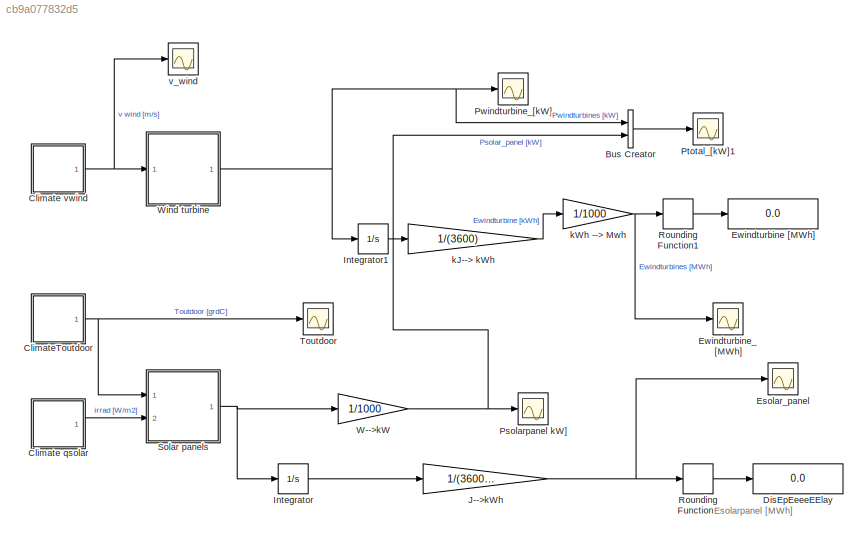
MODEL slx_cb9a077832d5
KIND model
CONFIG AbsTol = auto
CONFIG EnableMultiTasking = off
CONFIG FixedStep = auto
CONFIG InitFcn = global Az Inc\nSetup_Toutdoor\nSetup_qsolar2\nSetup_wind\nload SOL\nload Toutdoor\nload wind
CONFIG MaxStep = 900
CONFIG MinStep = auto
CONFIG RelTol = 1e-3
CONFIG SampleTimeConstraint = Unconstrained
CONFIG Solver = ode45
CONFIG SolverName = ode45
CONFIG StartTime = 0.0
CONFIG StopTime = 365*3600*24
BLOCK [BusCreator] Bus Creator
  DisplayOption = bar
  InheritFromInputs = on
  Inputs = 2
  Ports = [2, 1]
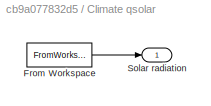
BLOCK [SubSystem] Climate  qsolar
  Ports = [0, 1]
  RequestExecContextInheritance = off
BLOCK [FromWorkspace] Climate  qsolar/From Workspace
  SampleTime = 0
  VariableName = Irrad
BLOCK [Outport] Climate  qsolar/Solar radiation
  IconDisplay = Port number
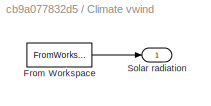
BLOCK [SubSystem] Climate vwind
  Ports = [0, 1]
  RequestExecContextInheritance = off
BLOCK [FromWorkspace] Climate vwind/From Workspace
  SampleTime = 0
  VariableName = vwind
BLOCK [Outport] Climate vwind/Solar radiation
  IconDisplay = Port number
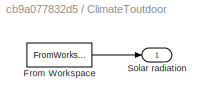
BLOCK [SubSystem] ClimateToutdoor
  Ports = [0, 1]
  RequestExecContextInheritance = off
BLOCK [FromWorkspace] ClimateToutdoor/From Workspace
  SampleTime = 0
  VariableName = Tout
BLOCK [Outport] ClimateToutdoor/Solar radiation
  IconDisplay = Port number
BLOCK [Display] DisEpEeeeEElay
  Decimation = 1
  Description = Esolar
  Ports = [1]
BLOCK [Scope] Esolar_panel
  Floating = off
  NumInputPorts = 1
  Ports = [1]
  ScopeSpecificationString = Simulink.scopes.TimeScopeBlockCfg('CurrentConfiguration', extmgr.ConfigurationSet(extmgr.Configuration('Core','General UI',true,'FigureColor',[1 1 1]),extmgr.Configuration('Core','Source UI',true),extmgr.Configuration('Sources','WiredSimulink',true,'DataLogging',true,'DataLoggingVariableName','Esolarpanel','SampleTime','3600','DataLoggingSaveFormat','Array','DataLoggingDecimation','1','DataLogging...<+2802ch>
BLOCK [Display] Ewindturbine [MWh]
  Decimation = 1
  Description = Esolar
  Ports = [1]
BLOCK [Scope] Ewindturbine_[MWh]
  Floating = off
  NumInputPorts = 1
  Ports = [1]
  ScopeSpecificationString = C++SS(StrPVP('Location','[218, 127, 1016, 616]'),StrPVP('Open','off'),MxPVP('AxesTitles',53,'struct(''axes1'',''%<SignalLabel>'')'),MxPVP('ScopeGraphics',56,'struct(''FigureColor'',''[1 1 1]'',''AxesColor'',''[1 1 1]'',''AxesTickColor'',''[0 0 0]'',''LineColors'',''[0 0 1;1 0 1;0 1 1;1 0 0;0 1 0;0 0 1]'',''LineStyles'',''-|-|-|-|-|-'',''LineWidths'',''[1 0.5 0.5 0.5 0.5 0.5]'',''MarkerStyles'',''n...<+371ch>
BLOCK [Integrator] Integrator
  Ports = [1, 1]
BLOCK [Integrator] Integrator1
  Ports = [1, 1]
BLOCK [Gain] J-->kWh
  Gain = 1/(3600)*10^-6
  OutDataTypeStr = Inherit: Inherit via internal rule
  ParamDataTypeStr = Inherit: Inherit via internal rule
  SaturateOnIntegerOverflow = off
BLOCK [Scope] Psolarpanel kW]
  Floating = off
  NumInputPorts = 1
  Ports = [1]
  ScopeSpecificationString = Simulink.scopes.TimeScopeBlockCfg('CurrentConfiguration', extmgr.ConfigurationSet(extmgr.Configuration('Core','General UI',true,'FigureColor',[1 1 1]),extmgr.Configuration('Core','Source UI',true),extmgr.Configuration('Sources','WiredSimulink',true,'DataLogging',true,'DataLoggingVariableName','Psolarpanel','SampleTime','3600','DataLoggingSaveFormat','Array','DataLoggingDecimation','1','DataLogging...<+2821ch>
BLOCK [Scope] Ptotal_[kW]1
  Floating = off
  NumInputPorts = 1
  Ports = [1]
  ScopeSpecificationString = Simulink.scopes.TimeScopeBlockCfg('CurrentConfiguration', extmgr.ConfigurationSet(extmgr.Configuration('Core','General UI',true,'FigureColor',[1 1 1]),extmgr.Configuration('Core','Source UI',true),extmgr.Configuration('Sources','WiredSimulink',true,'DataLogging',true,'DataLoggingVariableName','Ptotal','DataLoggingMaxPoints','50000','SampleTime','3600','DataLoggingSaveFormat','Array','DataLoggingDe...<+2877ch>
BLOCK [Scope] Pwindturbine_[kW]
  Floating = off
  NumInputPorts = 1
  Ports = [1]
  ScopeSpecificationString = Simulink.scopes.TimeScopeBlockCfg('CurrentConfiguration', extmgr.ConfigurationSet(extmgr.Configuration('Core','General UI',true,'FigureColor',[1 1 1]),extmgr.Configuration('Core','Source UI',true),extmgr.Configuration('Sources','WiredSimulink',true,'DataLogging',true,'DataLoggingVariableName','Pwindturbine','DataLoggingMaxPoints','50000','SampleTime','3600','DataLoggingSaveFormat','Array','DataLog...<+2859ch>
BLOCK [Rounding] Rounding Function1
  Operator = round
BLOCK [Rounding] Rounding Function2
  Operator = round
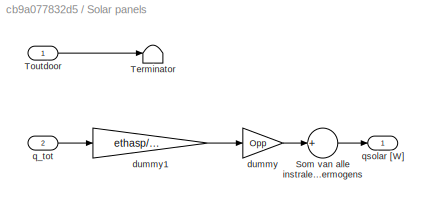
BLOCK [SubSystem] Solar panels
  Ports = [2, 1]
  RequestExecContextInheritance = off
BLOCK [Sum] Solar panels/Som van alle instralende vermogens
  InputSameDT = off
  Inputs = +
  OutDataTypeStr = Inherit: Inherit via internal rule
  Ports = [1, 1]
  SaturateOnIntegerOverflow = off
BLOCK [Terminator] Solar panels/Terminator
BLOCK [Inport] Solar panels/Toutdoor
  IconDisplay = Port number
BLOCK [Gain] Solar panels/dummy
  Gain = Opp
  OutDataTypeStr = Inherit: Inherit via internal rule
  ParamDataTypeStr = Inherit: Inherit via internal rule
  SaturateOnIntegerOverflow = off
BLOCK [Gain] Solar panels/dummy1
  Gain = ethasp/100
  OutDataTypeStr = Inherit: Inherit via internal rule
  ParamDataTypeStr = Inherit: Inherit via internal rule
  SaturateOnIntegerOverflow = off
BLOCK [Inport] Solar panels/q_tot
  IconDisplay = Port number
  Port = 2
BLOCK [Outport] Solar panels/qsolar [W]
  IconDisplay = Port number
BLOCK [Scope] Toutdoor
  Floating = off
  NumInputPorts = 1
  Ports = [1]
  ScopeSpecificationString = C++SS(StrPVP('Location','[465, 98, 1221, 534]'),StrPVP('Open','off'),MxPVP('AxesTitles',53,'struct(''axes1'',''%<SignalLabel>'')'),MxPVP('ScopeGraphics',56,'struct(''FigureColor'',''[1 1 1]'',''AxesColor'',''[1 1 1]'',''AxesTickColor'',''[0 0 0]'',''LineColors'',''[0 0 1;1 0 1;0 1 1;1 0 0;0 1 0;0 0 1]'',''LineStyles'',''-|-|-|-|-|-'',''LineWidths'',''[1 0.5 0.5 0.5 0.5 0.5]'',''MarkerStyles'',''no...<+332ch>
BLOCK [Gain] W-->kW
  Gain = 1/1000
  OutDataTypeStr = Inherit: Inherit via internal rule
  ParamDataTypeStr = Inherit: Inherit via internal rule
  SaturateOnIntegerOverflow = off
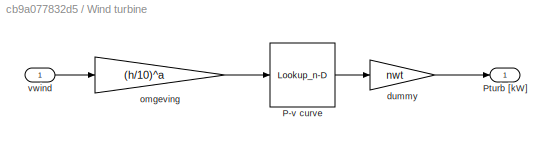
BLOCK [SubSystem] Wind turbine
  Ports = [1, 1]
  RequestExecContextInheritance = off
BLOCK [Lookup_n-D] Wind turbine/P-v curve
  BreakpointsForDimension1 = v
  InternalRulePriority = Speed
  NumberOfTableDimensions = 1
  Ports = [1, 1]
  RndMeth = Simplest
  Table = P
BLOCK [Outport] Wind turbine/Pturb [kW]
  IconDisplay = Port number
BLOCK [Gain] Wind turbine/dummy
  Gain = nwt
  OutDataTypeStr = Inherit: Inherit via internal rule
  ParamDataTypeStr = Inherit: Inherit via internal rule
  SaturateOnIntegerOverflow = off
BLOCK [Gain] Wind turbine/omgeving
  Gain = (h/10)^a
  OutDataTypeStr = Inherit: Inherit via internal rule
  ParamDataTypeStr = Inherit: Inherit via internal rule
  SaturateOnIntegerOverflow = off
BLOCK [Inport] Wind turbine/vwind
  IconDisplay = Port number
BLOCK [Gain] kJ--> kWh
  Gain = 1/(3600)
  OutDataTypeStr = Inherit: Inherit via internal rule
  ParamDataTypeStr = Inherit: Inherit via internal rule
  SaturateOnIntegerOverflow = off
BLOCK [Gain] kWh --> Mwh
  Gain = 1/1000
  OutDataTypeStr = Inherit: Inherit via internal rule
  ParamDataTypeStr = Inherit: Inherit via internal rule
  SaturateOnIntegerOverflow = off
BLOCK [Scope] v_wind
  Floating = off
  NumInputPorts = 1
  Ports = [1]
  ScopeSpecificationString = Simulink.scopes.TimeScopeBlockCfg('CurrentConfiguration', extmgr.ConfigurationSet(extmgr.Configuration('Core','General UI',true,'FigureColor',[1 1 1]),extmgr.Configuration('Core','Source UI',true),extmgr.Configuration('Sources','WiredSimulink',true,'DataLogging',true,'DataLoggingVariableName','vwind','DataLoggingMaxPoints','50000','SampleTime','3600','DataLoggingSaveFormat','Array','DataLoggingDec...<+2834ch>
ANNOTATION (root): Esolarpanel [MWh]
LINE Bus Creator:1 -> Ptotal_[kW]1:1
LINE Climate  qsolar/From Workspace:1 -> Climate  qsolar/Solar radiation:1
LINE Climate  qsolar:1 -> Solar panels:2
LINE Climate vwind/From Workspace:1 -> Climate vwind/Solar radiation:1
NET Climate vwind:1 -> Wind turbine:1, v_wind:1
LINE ClimateToutdoor/From Workspace:1 -> ClimateToutdoor/Solar radiation:1
NET ClimateToutdoor:1 -> Solar panels:1, Toutdoor:1
LINE Integrator1:1 -> kJ--> kWh:1
LINE Integrator:1 -> J-->kWh:1
NET J-->kWh:1 -> Esolar_panel:1, Rounding Function2:1
LINE Rounding Function1:1 -> Ewindturbine [MWh]:1
LINE Rounding Function2:1 -> DisEpEeeeEElay:1
LINE Solar panels/Som van alle instralende vermogens:1 -> Solar panels/qsolar [W]:1
LINE Solar panels/Toutdoor:1 -> Solar panels/Terminator:1
LINE Solar panels/dummy1:1 -> Solar panels/dummy:1
LINE Solar panels/dummy:1 -> Solar panels/Som van alle instralende vermogens:1
LINE Solar panels/q_tot:1 -> Solar panels/dummy1:1
NET Solar panels:1 -> Integrator:1, W-->kW:1
NET W-->kW:1 -> Bus Creator:2, Psolarpanel kW]:1
LINE Wind turbine/P-v curve:1 -> Wind turbine/dummy:1
LINE Wind turbine/dummy:1 -> Wind turbine/Pturb [kW]:1
LINE Wind turbine/omgeving:1 -> Wind turbine/P-v curve:1
LINE Wind turbine/vwind:1 -> Wind turbine/omgeving:1
NET Wind turbine:1 -> Bus Creator:1, Integrator1:1, Pwindturbine_[kW]:1
LINE kJ--> kWh:1 -> kWh --> Mwh:1
NET kWh --> Mwh:1 -> Ewindturbine_[MWh]:1, Rounding Function1:1
note: NET lines group one-source signal fan-out (src -> all destinations, sorted); 1:1 wires keep LINE
